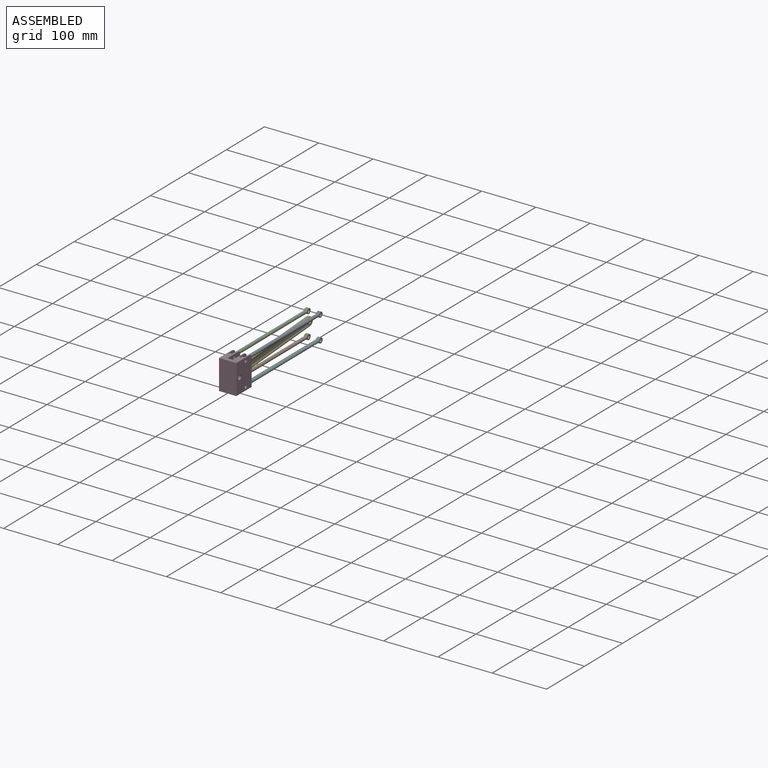
[diagram: assembled view]
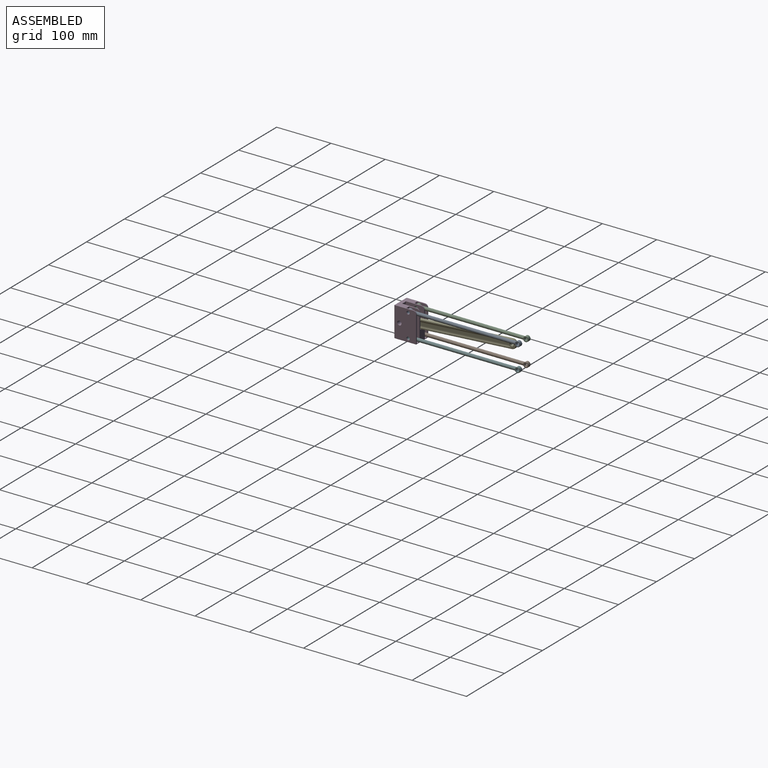
[diagram: assembled view, second angle]
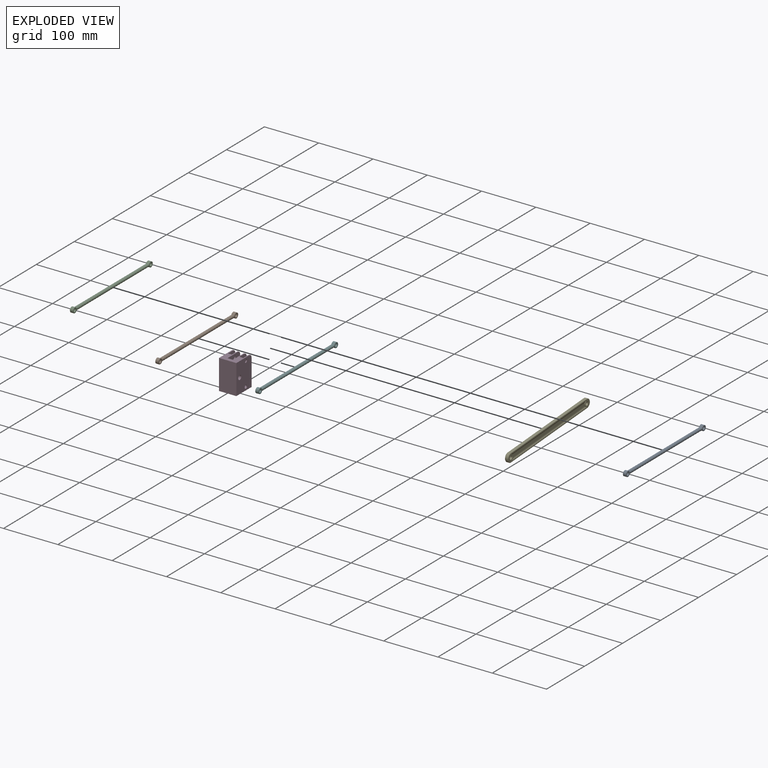
[diagram: exploded view]
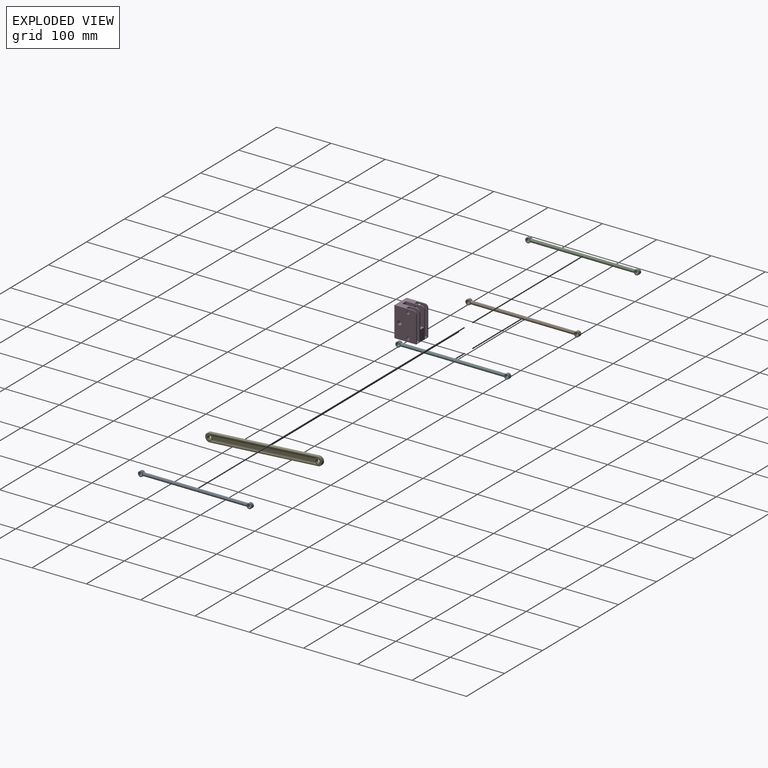
[diagram: exploded view, second angle]
ASSEMBLY  parts=6 mates=5
PART A: 12 faces, bbox 6x209.5x9.5 mm
  f0: cone r=3mm half-angle=0deg, axis (0,-1,0), area 3589.9mm2, adj f1,f8
  f1: cylinder r=4.75mm len=9.5mm, axis (-1,0,0), area 149.8mm2, adj f0,f3,f4
  f2: cylinder r=3mm len=6mm, axis (-1,0,0), area 113.1mm2, adj f3,f4
  f3: plane 9.5x9.5mm, normal (1,0,0), area 42.6mm2, adj f1,f2
  f4: plane 9.5x9.5mm, normal (-1,0,0), area 42.6mm2, adj f1,f2
  f5: plane 9.5x9.5mm, normal (-1,0,0), area 42.6mm2, adj f7,f8
  f6: plane 9.5x9.5mm, normal (1,0,0), area 42.6mm2, adj f7,f8
  f7: cylinder r=3mm len=6mm, axis (-1,0,0), area 113.1mm2, adj f5,f6
  f8: cylinder r=4.75mm len=9.5mm, axis (-1,0,0), area 149.1mm2, adj f0,f5,f6
  f9: cylinder r=4.75mm len=2.94mm, axis (-1,0,0), area 13.7mm2, adj f10
  f10: cone r=1.5mm half-angle=0deg, axis (0,-1,0), area 1777.4mm2, adj f9,f11
  f11: cylinder r=4.75mm len=3mm, axis (-1,0,0), area 7.2mm2, adj f10
PART B: same geometry as A
PART C: same geometry as A
PART D: 40 faces, bbox 32x40x55 mm
  f0: cylinder r=3mm len=6mm, axis (-1,0,0), area 37.7mm2, adj f17,f32
  f1: cylinder r=3mm len=6mm, axis (-1,0,0), area 37.7mm2, adj f17,f32
  f2: cylinder r=6mm len=6mm, axis (-1,0,0), area 18.8mm2, adj f3,f5,f17,f32
  f3: plane 49x32mm, normal (0,1,0), area 611mm2, adj f2,f7,f10,f12,f16,f17,f18,f19
  f4: cylinder r=3mm len=14mm, axis (-1,0,0), area 263.9mm2, adj f25,f33
  f5: plane 34x32mm, normal (0,0,1), area 633.1mm2, adj f2,f7,f10,f11,f16,f17,f18,f19
  f6: cylinder r=3mm len=6mm, axis (-1,0,0), area 37.7mm2, adj f20,f25
  f7: cylinder r=6mm len=6mm, axis (-1,0,0), area 18.8mm2, adj f3,f5,f20,f25
  f8: cylinder r=4mm len=11mm, axis (-1,0,0), area 276.5mm2, adj f17,f19
  f9: cylinder r=3mm len=6mm, axis (-1,0,0), area 37.7mm2, adj f19,f33
  f10: cylinder r=6mm len=6mm, axis (-1,0,0), area 18.8mm2, adj f3,f5,f19,f33
  f11: plane 55x32mm, normal (0,-1,0), area 1760mm2, adj f5,f12,f16,f17
  f12: plane 40x32mm, normal (0,0,-1), area 1280mm2, adj f3,f11,f16,f17
  f13: cylinder r=3mm len=6mm, axis (-1,0,0), area 37.7mm2, adj f16,f24
  f14: cylinder r=4mm len=11mm, axis (-1,0,0), area 276.5mm2, adj f16,f20
  f15: cylinder r=3mm len=6mm, axis (-1,0,0), area 37.7mm2, adj f16,f24
  f16: plane 55x40mm, normal (1,0,0), area 2085.5mm2, adj f3,f5,f11,f12,f13,f14,f15,f18
  f17: plane 55x40mm, normal (-1,0,0), area 2085.5mm2, adj f0,f1,f2,f3,f5,f8,f11,f12
  f18: cylinder r=6mm len=6mm, axis (-1,0,0), area 18.8mm2, adj f3,f5,f16,f24
  f19: plane 38x34.5mm, normal (1,0,0), area 1150.5mm2, adj f3,f5,f8,f9,f10,f21,f22,f23
  f20: plane 38x34.5mm, normal (-1,0,0), area 1150.5mm2, adj f3,f5,f6,f7,f14,f21,f22,f23
  f21: plane 31x10mm, normal (0,0,1), area 310mm2, adj f3,f19,f20,f23
  f22: plane 26.28x10mm, normal (0,0.98,-0.17), area 266.9mm2, adj f5,f19,f20,f23
  f23: cylinder r=7mm len=10mm, axis (1,0,0), area 122.2mm2, adj f19,f20,f21,f22
  f24: plane 54x20mm, normal (-1,0,0), area 878.4mm2, adj f3,f5,f13,f15,f18,f26,f27,f28
  f25: plane 54x20mm, normal (1,0,0), area 878.4mm2, adj f3,f4,f5,f6,f7,f26,f27,f28
  f26: plane 7x5.13mm, normal (0,0.98,-0.17), area 36.5mm2, adj f5,f24,f25,f27
  f27: cylinder r=5mm len=7mm, axis (-1,0,0), area 61.1mm2, adj f24,f25,f26,f28
  f28: plane 7x1.51mm, normal (0,0.38,0.92), area 11.5mm2, adj f24,f25,f27,f29
  f29: plane 36.5x7mm, normal (0,0.98,-0.17), area 259.5mm2, adj f24,f25,f28,f30
  f30: cylinder r=5mm len=7mm, axis (-1,0,0), area 61.1mm2, adj f24,f25,f29,f31
  f31: plane 15x7mm, normal (0,0,1), area 105mm2, adj f3,f24,f25,f30
  f32: plane 54x20mm, normal (1,0,0), area 878.4mm2, adj f0,f1,f2,f3,f5,f34,f35,f36
  f33: plane 54x20mm, normal (-1,0,0), area 878.4mm2, adj f3,f4,f5,f9,f10,f34,f35,f36
  f34: plane 7x5.13mm, normal (0,0.98,-0.17), area 36.5mm2, adj f5,f32,f33,f35
  f35: cylinder r=5mm len=7mm, axis (1,0,0), area 61.1mm2, adj f32,f33,f34,f36
  f36: plane 7x1.51mm, normal (0,0.38,0.92), area 11.5mm2, adj f32,f33,f35,f37
  f37: plane 36.5x7mm, normal (0,0.98,-0.17), area 259.5mm2, adj f32,f33,f36,f38
  f38: cylinder r=5mm len=7mm, axis (1,0,0), area 61.1mm2, adj f32,f33,f37,f39
  f39: plane 15x7mm, normal (0,0,1), area 105mm2, adj f3,f32,f33,f38
PART E: 30 faces, bbox 6x216x16 mm
  f0: cylinder r=5.5mm len=11mm, axis (-1,0,0), area 11.2mm2, adj f11,f13,f14,f15
  f1: cylinder r=5.5mm len=11mm, axis (-1,0,0), area 11.2mm2, adj f11,f13,f14,f15
  f2: plane 200x5mm, normal (0,0,-1), area 1000mm2, adj f3,f8,f19,f22
  f3: cylinder r=8mm len=16mm, axis (-1,0,0), area 125.7mm2, adj f2,f4,f21,f23
  f4: plane 200x5mm, normal (0,0,1), area 1000mm2, adj f3,f8,f20,f25
  f5: cylinder r=5.5mm len=11mm, axis (-1,0,0), area 11.2mm2, adj f10,f12,f16,f17
  f6: cylinder r=5.5mm len=11mm, axis (-1,0,0), area 11.2mm2, adj f10,f12,f16,f17
  f7: cylinder r=3mm len=6mm, axis (-1,0,0), area 94.2mm2, adj f26,f27
  f8: cylinder r=8mm len=16mm, axis (-1,0,0), area 125.7mm2, adj f2,f4,f18,f24
  f9: cylinder r=3mm len=6mm, axis (-1,0,0), area 94.2mm2, adj f28,f29
  f10: plane 215x15mm, normal (1,0,0), area 994.8mm2, adj f5,f6,f16,f17,f18,f19,f20,f21
  f11: plane 215x15mm, normal (-1,0,0), area 994.8mm2, adj f0,f1,f14,f15,f22,f23,f24,f25
  f12: plane 190.2x5mm, normal (1,0,0), area 947mm2, adj f5,f6,f16,f17
  f13: plane 190.2x5mm, normal (-1,0,0), area 947mm2, adj f0,f1,f14,f15
  f14: cylinder r=5mm len=200mm, axis (0,1,0), area 621.5mm2, adj f0,f1,f11,f13
  f15: cylinder r=5mm len=200mm, axis (0,-1,0), area 621.5mm2, adj f0,f1,f11,f13
  f16: cylinder r=5mm len=200mm, axis (0,1,0), area 621.5mm2, adj f5,f6,f10,f12
  f17: cylinder r=5mm len=200mm, axis (0,-1,0), area 621.5mm2, adj f5,f6,f10,f12
  f18: cone r=8mm half-angle=45deg, axis (-1,0,0), area 17.2mm2, adj f8,f10,f19,f20
  f19: plane 200x0.5mm, normal (0.71,0,-0.71), area 141.4mm2, adj f2,f10,f18,f21
  f20: plane 200x0.5mm, normal (0.71,0,0.71), area 141.4mm2, adj f4,f10,f18,f21
  f21: cone r=7.5mm half-angle=45deg, axis (-1,0,0), area 17.2mm2, adj f3,f10,f19,f20
  f22: plane 200x0.5mm, normal (-0.71,0,-0.71), area 141.4mm2, adj f2,f11,f23,f24
  f23: cone r=8mm half-angle=45deg, axis (1,0,0), area 17.2mm2, adj f3,f11,f22,f25
  f24: cone r=7.5mm half-angle=45deg, axis (1,0,0), area 17.2mm2, adj f8,f11,f22,f25
  f25: plane 200x0.5mm, normal (-0.71,0,0.71), area 141.4mm2, adj f4,f11,f23,f24
  f26: cone r=3mm half-angle=45deg, axis (1,0,0), area 14.4mm2, adj f7,f10
  f27: cone r=3.5mm half-angle=45deg, axis (-1,0,0), area 14.4mm2, adj f7,f11
  f28: cone r=3.5mm half-angle=45deg, axis (1,0,0), area 14.4mm2, adj f9,f10
  f29: cone r=3mm half-angle=45deg, axis (-1,0,0), area 14.4mm2, adj f9,f11
PART F: same geometry as A
PLACE A t=(16.23,107.03,20.02)mm
PLACE B t=(-5.77,107.03,-22.98)mm
PLACE C t=(-5.77,107.03,20.02)mm
PLACE D t=(5.23,2.03,-1.48)mm fixed
PLACE E rot(axis=(1,0,0),4deg) t=(7.73,90.79,5.5)mm
PLACE F t=(16.23,107.03,-22.98)mm
MATE revolute D.f0 <-> B.f7  axis (1,0,0) through (-8.77,7.03,-22.98)mm
MATE revolute A.f7 <-> D.f1  axis (1,0,0) through (19.23,7.03,20.02)mm
MATE revolute D.f8 <-> E.f1  axis (-1,0,0) through (10.23,-8.97,-1.48)mm
MATE revolute D.f0 <-> F.f7  axis (-1,0,0) through (19.23,7.03,-22.98)mm
MATE revolute D.f1 <-> C.f7  axis (1,0,0) through (-8.77,7.03,20.02)mm
